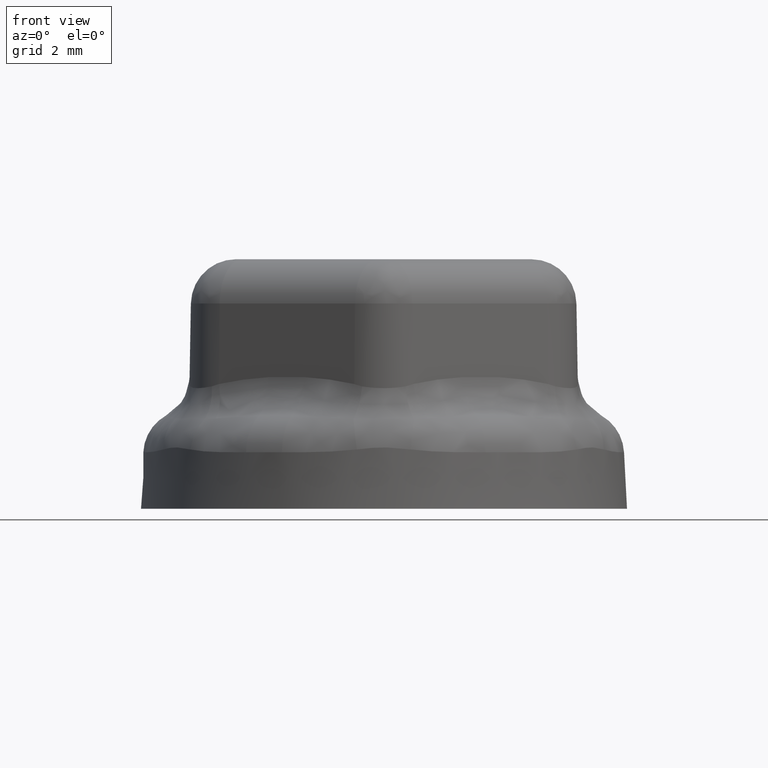
[diagram: clean part render]
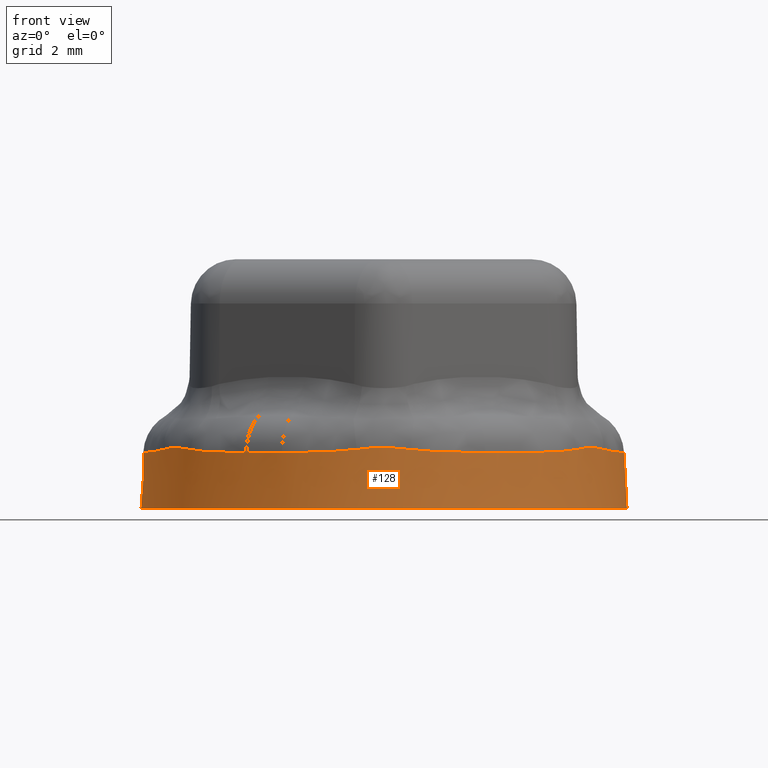
[diagram: same view with one face highlighted and labeled with its STEP entity id]
A machine part, front view. The second image highlights one B-rep face of the part: STEP entity #128.
In plain terms, the highlighted conical surface has half-angle 3 deg.
Its self-contained STEP definition (entity closure, byte-faithful):
#128 = ADVANCED_FACE( '', ( #314, #315 ), #316, .T. );
#314 = FACE_BOUND( '', #2387, .T. );
#315 = FACE_OUTER_BOUND( '', #2388, .T. );
#316 = CONICAL_SURFACE( '', #2389, 8.09433400270946, 0.0523598775598299 );
#2387 = EDGE_LOOP( '', ( #5899, #5900, #5901, #5902, #5903, #5904, #5905, #5906, #5907, #5908, #5909, #5910, #5911, #5912, #5913, #5914, #5915, #5916, #5917, #5918, #5919, #5920, #5921, #5922 ) );
#2388 = EDGE_LOOP( '', ( #5923 ) );
#2389 = AXIS2_PLACEMENT_3D( '', #5924, #5925, #5926 );
#5899 = ORIENTED_EDGE( '', *, *, #6474, .T. );
#5900 = ORIENTED_EDGE( '', *, *, #6475, .T. );
#5901 = ORIENTED_EDGE( '', *, *, #6476, .T. );
#5902 = ORIENTED_EDGE( '', *, *, #6477, .T. );
#5903 = ORIENTED_EDGE( '', *, *, #6478, .T. );
#5904 = ORIENTED_EDGE( '', *, *, #6479, .T. );
#5905 = ORIENTED_EDGE( '', *, *, #6480, .T. );
#5906 = ORIENTED_EDGE( '', *, *, #6481, .T. );
#5907 = ORIENTED_EDGE( '', *, *, #6482, .T. );
#5908 = ORIENTED_EDGE( '', *, *, #6483, .T. );
#5909 = ORIENTED_EDGE( '', *, *, #6469, .T. );
#5910 = ORIENTED_EDGE( '', *, *, #6473, .T. );
#5911 = ORIENTED_EDGE( '', *, *, #6484, .T. );
#5912 = ORIENTED_EDGE( '', *, *, #6465, .T. );
#5913 = ORIENTED_EDGE( '', *, *, #6485, .T. );
#5914 = ORIENTED_EDGE( '', *, *, #6486, .T. );
#5915 = ORIENTED_EDGE( '', *, *, #6487, .T. );
#5916 = ORIENTED_EDGE( '', *, *, #6488, .T. );
#5917 = ORIENTED_EDGE( '', *, *, #6489, .T. );
#5918 = ORIENTED_EDGE( '', *, *, #6490, .T. );
#5919 = ORIENTED_EDGE( '', *, *, #6491, .T. );
#5920 = ORIENTED_EDGE( '', *, *, #6492, .T. );
#5921 = ORIENTED_EDGE( '', *, *, #6493, .T. );
#5922 = ORIENTED_EDGE( '', *, *, #6494, .T. );
#5923 = ORIENTED_EDGE( '', *, *, #6495, .T. );
#5924 = CARTESIAN_POINT( '', ( 1.21430643318377E-014, 0.000000000000000, 3.03576608295941E-015 ) );
#5925 = DIRECTION( '', ( 0.000000000000000, 0.000000000000000, -1.00000000000000 ) );
#5926 = DIRECTION( '', ( 1.00000000000000, 0.000000000000000, 0.000000000000000 ) );
#6465 = EDGE_CURVE( '', #6865, #6869, #6871, .T. );
#6469 = EDGE_CURVE( '', #6873, #6877, #6879, .T. );
#6473 = EDGE_CURVE( '', #6877, #6884, #6886, .T. );
#6474 = EDGE_CURVE( '', #6887, #6888, #6889, .T. );
#6475 = EDGE_CURVE( '', #6888, #6890, #6891, .T. );
#6476 = EDGE_CURVE( '', #6890, #6892, #6893, .T. );
#6477 = EDGE_CURVE( '', #6892, #6894, #6895, .T. );
#6478 = EDGE_CURVE( '', #6894, #6896, #6897, .T. );
#6479 = EDGE_CURVE( '', #6896, #6898, #6899, .T. );
#6480 = EDGE_CURVE( '', #6898, #6900, #6901, .T. );
#6481 = EDGE_CURVE( '', #6900, #6902, #6903, .T. );
#6482 = EDGE_CURVE( '', #6902, #6904, #6905, .T. );
#6483 = EDGE_CURVE( '', #6904, #6873, #6906, .T. );
#6484 = EDGE_CURVE( '', #6884, #6865, #6907, .T. );
#6485 = EDGE_CURVE( '', #6869, #6908, #6909, .T. );
#6486 = EDGE_CURVE( '', #6908, #6910, #6911, .T. );
#6487 = EDGE_CURVE( '', #6910, #6912, #6913, .T. );
#6488 = EDGE_CURVE( '', #6912, #6914, #6915, .T. );
#6489 = EDGE_CURVE( '', #6914, #6916, #6917, .T. );
#6490 = EDGE_CURVE( '', #6916, #6918, #6919, .T. );
#6491 = EDGE_CURVE( '', #6918, #6920, #6921, .T. );
#6492 = EDGE_CURVE( '', #6920, #6922, #6923, .T. );
#6493 = EDGE_CURVE( '', #6922, #6924, #6925, .T. );
#6494 = EDGE_CURVE( '', #6924, #6887, #6926, .T. );
#6495 = EDGE_CURVE( '', #6927, #6927, #6928, .T. );
#6865 = VERTEX_POINT( '', #8088 );
#6869 = VERTEX_POINT( '', #8099 );
#6871 = B_SPLINE_CURVE_WITH_KNOTS( '', 3, ( #8101, #8102, #8103, #8104, #8105, #8106, #8107, #8108, #8109, #8110, #8111, #8112, #8113, #8114, #8115, #8116, #8117, #8118, #8119 ), .UNSPECIFIED., .F., .F., ( 4, 1, 1, 1, 2, 2, 2, 2, 2, 2, 4 ), ( 0.000000000000000, 0.000325173491565698, 0.000650346983131395, 0.000975520474697093, 0.00130069396626279, 0.00138198733915421, 0.00146328071204564, 0.00162586745782848, 0.00195104094939417, 0.00227621444095986, 0.00260138793252555 ), .UNSPECIFIED. );
#6873 = VERTEX_POINT( '', #8121 );
#6877 = VERTEX_POINT( '', #8144 );
#6879 = B_SPLINE_CURVE_WITH_KNOTS( '', 3, ( #8146, #8147, #8148, #8149, #8150, #8151, #8152, #8153, #8154, #8155, #8156, #8157, #8158, #8159, #8160, #8161, #8162, #8163, #8164 ), .UNSPECIFIED., .F., .F., ( 4, 2, 2, 2, 1, 2, 2, 2, 2, 4 ), ( 0.000000000000000, 0.000223145436456121, 0.000446290872912242, 0.000669436309368364, 0.000892581745824485, 0.00111572718228061, 0.00133887261873673, 0.00156201805519285, 0.00167359077342091, 0.00178516349164897 ), .UNSPECIFIED. );
#6884 = VERTEX_POINT( '', #8181 );
#6886 = B_SPLINE_CURVE_WITH_KNOTS( '', 3, ( #8183, #8184, #8185, #8186, #8187, #8188, #8189, #8190, #8191, #8192, #8193, #8194, #8195, #8196, #8197, #8198 ), .UNSPECIFIED., .F., .F., ( 4, 2, 2, 2, 2, 1, 1, 1, 1, 4 ), ( 0.000000000000000, 0.000164640328272019, 0.000329280656544039, 0.000658561313088078, 0.000987841969632118, 0.00131712262617616, 0.00164640328272020, 0.00197568393926423, 0.00230496459580827, 0.00263424525235231 ), .UNSPECIFIED. );
#6887 = VERTEX_POINT( '', #8199 );
#6888 = VERTEX_POINT( '', #8200 );
#6889 = CIRCLE( '', #8201, 7.99588578313496 );
#6890 = VERTEX_POINT( '', #8202 );
#6891 = B_SPLINE_CURVE_WITH_KNOTS( '', 3, ( #8203, #8204, #8205, #8206, #8207, #8208, #8209, #8210, #8211, #8212, #8213, #8214, #8215, #8216, #8217, #8218, #8219, #8220, #8221 ), .UNSPECIFIED., .F., .F., ( 4, 1, 1, 1, 2, 2, 2, 2, 2, 2, 4 ), ( 0.000000000000000, 0.000325173491565409, 0.000650346983130818, 0.000975520474696227, 0.00130069396626164, 0.00138198733915299, 0.00146328071204434, 0.00162586745782704, 0.00195104094939245, 0.00227621444095786, 0.00260138793252326 ), .UNSPECIFIED. );
#6892 = VERTEX_POINT( '', #8222 );
#6893 = B_SPLINE_CURVE_WITH_KNOTS( '', 3, ( #8223, #8224, #8225, #8226, #8227, #8228, #8229, #8230, #8231, #8232, #8233, #8234, #8235, #8236, #8237, #8238, #8239, #8240, #8241 ), .UNSPECIFIED., .F., .F., ( 4, 2, 2, 2, 1, 2, 2, 2, 2, 4 ), ( 0.000000000000000, 0.000223145436456501, 0.000446290872913002, 0.000669436309369503, 0.000892581745826004, 0.00111572718228250, 0.00133887261873901, 0.00156201805519551, 0.00167359077342376, 0.00178516349165201 ), .UNSPECIFIED. );
#6894 = VERTEX_POINT( '', #8242 );
#6895 = B_SPLINE_CURVE_WITH_KNOTS( '', 3, ( #8243, #8244, #8245, #8246, #8247, #8248, #8249, #8250, #8251, #8252, #8253, #8254, #8255, #8256, #8257, #8258 ), .UNSPECIFIED., .F., .F., ( 4, 2, 2, 2, 2, 1, 1, 1, 1, 4 ), ( 0.000000000000000, 0.000164640328272002, 0.000329280656544005, 0.000658561313088010, 0.000987841969632014, 0.00131712262617602, 0.00164640328272003, 0.00197568393926403, 0.00230496459580804, 0.00263424525235204 ), .UNSPECIFIED. );
#6896 = VERTEX_POINT( '', #8259 );
#6897 = CIRCLE( '', #8260, 7.99588578313496 );
#6898 = VERTEX_POINT( '', #8261 );
#6899 = B_SPLINE_CURVE_WITH_KNOTS( '', 3, ( #8262, #8263, #8264, #8265, #8266, #8267, #8268, #8269, #8270, #8271, #8272, #8273, #8274, #8275, #8276, #8277, #8278, #8279, #8280 ), .UNSPECIFIED., .F., .F., ( 4, 1, 1, 1, 2, 2, 2, 2, 2, 2, 4 ), ( 0.000000000000000, 0.000325173491565534, 0.000650346983131068, 0.000975520474696602, 0.00130069396626214, 0.00138198733915352, 0.00146328071204490, 0.00162586745782767, 0.00195104094939321, 0.00227621444095874, 0.00260138793252428 ), .UNSPECIFIED. );
#6900 = VERTEX_POINT( '', #8281 );
#6901 = B_SPLINE_CURVE_WITH_KNOTS( '', 3, ( #8282, #8283, #8284, #8285, #8286, #8287, #8288, #8289, #8290, #8291, #8292, #8293, #8294, #8295, #8296, #8297, #8298, #8299, #8300 ), .UNSPECIFIED., .F., .F., ( 4, 2, 2, 2, 1, 2, 2, 2, 2, 4 ), ( 0.000000000000000, 0.000223145436456382, 0.000446290872912763, 0.000669436309369145, 0.000892581745825526, 0.00111572718228191, 0.00133887261873829, 0.00156201805519467, 0.00167359077342286, 0.00178516349165105 ), .UNSPECIFIED. );
#6902 = VERTEX_POINT( '', #8301 );
#6903 = B_SPLINE_CURVE_WITH_KNOTS( '', 3, ( #8302, #8303, #8304, #8305, #8306, #8307, #8308, #8309, #8310, #8311, #8312, #8313, #8314, #8315, #8316, #8317 ), .UNSPECIFIED., .F., .F., ( 4, 2, 2, 2, 2, 1, 1, 1, 1, 4 ), ( 0.000000000000000, 0.000164640328271998, 0.000329280656543995, 0.000658561313087990, 0.000987841969631986, 0.00131712262617598, 0.00164640328271998, 0.00197568393926397, 0.00230496459580797, 0.00263424525235196 ), .UNSPECIFIED. );
#6904 = VERTEX_POINT( '', #8318 );
#6905 = CIRCLE( '', #8319, 7.99588578313496 );
#6906 = B_SPLINE_CURVE_WITH_KNOTS( '', 3, ( #8320, #8321, #8322, #8323, #8324, #8325, #8326, #8327, #8328, #8329, #8330, #8331, #8332, #8333, #8334, #8335, #8336, #8337, #8338 ), .UNSPECIFIED., .F., .F., ( 4, 1, 1, 1, 2, 2, 2, 2, 2, 2, 4 ), ( 0.000000000000000, 0.000325173491565790, 0.000650346983131579, 0.000975520474697369, 0.00130069396626316, 0.00138198733915461, 0.00146328071204605, 0.00162586745782895, 0.00195104094939474, 0.00227621444096053, 0.00260138793252632 ), .UNSPECIFIED. );
#6907 = CIRCLE( '', #8339, 7.99588578313496 );
#6908 = VERTEX_POINT( '', #8340 );
#6909 = B_SPLINE_CURVE_WITH_KNOTS( '', 3, ( #8341, #8342, #8343, #8344, #8345, #8346, #8347, #8348, #8349, #8350, #8351, #8352, #8353, #8354, #8355, #8356, #8357, #8358, #8359 ), .UNSPECIFIED., .F., .F., ( 4, 2, 2, 2, 1, 2, 2, 2, 2, 4 ), ( 0.000000000000000, 0.000223145436456239, 0.000446290872912477, 0.000669436309368716, 0.000892581745824954, 0.00111572718228119, 0.00133887261873743, 0.00156201805519367, 0.00167359077342179, 0.00178516349164991 ), .UNSPECIFIED. );
#6910 = VERTEX_POINT( '', #8360 );
#6911 = B_SPLINE_CURVE_WITH_KNOTS( '', 3, ( #8361, #8362, #8363, #8364, #8365, #8366, #8367, #8368, #8369, #8370, #8371, #8372, #8373, #8374, #8375, #8376 ), .UNSPECIFIED., .F., .F., ( 4, 2, 2, 2, 2, 1, 1, 1, 1, 4 ), ( 0.000000000000000, 0.000164640328272026, 0.000329280656544052, 0.000658561313088103, 0.000987841969632155, 0.00131712262617621, 0.00164640328272026, 0.00197568393926431, 0.00230496459580836, 0.00263424525235241 ), .UNSPECIFIED. );
#6912 = VERTEX_POINT( '', #8377 );
#6913 = CIRCLE( '', #8378, 7.99588578313496 );
#6914 = VERTEX_POINT( '', #8379 );
#6915 = B_SPLINE_CURVE_WITH_KNOTS( '', 3, ( #8380, #8381, #8382, #8383, #8384, #8385, #8386, #8387, #8388, #8389, #8390, #8391, #8392, #8393, #8394, #8395, #8396, #8397, #8398 ), .UNSPECIFIED., .F., .F., ( 4, 1, 1, 1, 2, 2, 2, 2, 2, 2, 4 ), ( 0.000000000000000, 0.000325173491565626, 0.000650346983131251, 0.000975520474696877, 0.00130069396626250, 0.00138198733915391, 0.00146328071204532, 0.00162586745782813, 0.00195104094939375, 0.00227621444095938, 0.00260138793252500 ), .UNSPECIFIED. );
#6916 = VERTEX_POINT( '', #8399 );
#6917 = B_SPLINE_CURVE_WITH_KNOTS( '', 3, ( #8400, #8401, #8402, #8403, #8404, #8405, #8406, #8407, #8408, #8409, #8410, #8411, #8412, #8413, #8414, #8415, #8416, #8417, #8418 ), .UNSPECIFIED., .F., .F., ( 4, 2, 2, 2, 1, 2, 2, 2, 2, 4 ), ( 0.000000000000000, 0.000223145436456331, 0.000446290872912662, 0.000669436309368993, 0.000892581745825325, 0.00111572718228166, 0.00133887261873799, 0.00156201805519432, 0.00167359077342248, 0.00178516349165065 ), .UNSPECIFIED. );
#6918 = VERTEX_POINT( '', #8419 );
#6919 = B_SPLINE_CURVE_WITH_KNOTS( '', 3, ( #8420, #8421, #8422, #8423, #8424, #8425, #8426, #8427, #8428, #8429, #8430, #8431, #8432, #8433, #8434, #8435 ), .UNSPECIFIED., .F., .F., ( 4, 2, 2, 2, 2, 1, 1, 1, 1, 4 ), ( 0.000000000000000, 0.000164640328272011, 0.000329280656544022, 0.000658561313088048, 0.000987841969632074, 0.00131712262617610, 0.00164640328272013, 0.00197568393926415, 0.00230496459580818, 0.00263424525235220 ), .UNSPECIFIED. );
#6920 = VERTEX_POINT( '', #8436 );
#6921 = CIRCLE( '', #8437, 7.99588578313496 );
#6922 = VERTEX_POINT( '', #8438 );
#6923 = B_SPLINE_CURVE_WITH_KNOTS( '', 3, ( #8439, #8440, #8441, #8442, #8443, #8444, #8445, #8446, #8447, #8448, #8449, #8450, #8451, #8452, #8453, #8454, #8455, #8456, #8457 ), .UNSPECIFIED., .F., .F., ( 4, 1, 1, 1, 2, 2, 2, 2, 2, 2, 4 ), ( 0.000000000000000, 0.000325173491565802, 0.000650346983131603, 0.000975520474697405, 0.00130069396626321, 0.00138198733915466, 0.00146328071204611, 0.00162586745782901, 0.00195104094939481, 0.00227621444096061, 0.00260138793252641 ), .UNSPECIFIED. );
#6924 = VERTEX_POINT( '', #8458 );
#6925 = B_SPLINE_CURVE_WITH_KNOTS( '', 3, ( #8459, #8460, #8461, #8462, #8463, #8464, #8465, #8466, #8467, #8468, #8469, #8470, #8471, #8472, #8473, #8474, #8475, #8476, #8477 ), .UNSPECIFIED., .F., .F., ( 4, 2, 2, 2, 1, 2, 2, 2, 2, 4 ), ( 0.000000000000000, 0.000223145436456130, 0.000446290872912259, 0.000669436309368389, 0.000892581745824519, 0.00111572718228065, 0.00133887261873678, 0.00156201805519291, 0.00167359077342097, 0.00178516349164904 ), .UNSPECIFIED. );
#6926 = B_SPLINE_CURVE_WITH_KNOTS( '', 3, ( #8478, #8479, #8480, #8481, #8482, #8483, #8484, #8485, #8486, #8487, #8488, #8489, #8490, #8491, #8492, #8493 ), .UNSPECIFIED., .F., .F., ( 4, 2, 2, 2, 2, 1, 1, 1, 1, 4 ), ( 0.000000000000000, 0.000164640328272010, 0.000329280656544020, 0.000658561313088040, 0.000987841969632061, 0.00131712262617608, 0.00164640328272010, 0.00197568393926412, 0.00230496459580815, 0.00263424525235217 ), .UNSPECIFIED. );
#6927 = VERTEX_POINT( '', #8494 );
#6928 = CIRCLE( '', #8495, 8.09433400270946 );
#8088 = CARTESIAN_POINT( '', ( -4.57923743016947, -6.55475201781689, 1.87850393436442 ) );
#8099 = CARTESIAN_POINT( '', ( -6.43078995403035, -4.74343509866338, 1.97273912912157 ) );
#8101 = CARTESIAN_POINT( '', ( -4.57923743016947, -6.55475201781689, 1.87850393436442 ) );
#8102 = CARTESIAN_POINT( '', ( -4.66844510581741, -6.49243034244685, 1.87850393436442 ) );
#8103 = CARTESIAN_POINT( '', ( -4.84398973222034, -6.36436791151696, 1.87861370707231 ) );
#8104 = CARTESIAN_POINT( '', ( -5.09874144512760, -6.16208175314542, 1.87970976248219 ) );
#8105 = CARTESIAN_POINT( '', ( -5.34492305439954, -5.94960941245997, 1.88256913845339 ) );
#8106 = CARTESIAN_POINT( '', ( -5.50329290473958, -5.80113581674561, 1.88636939840489 ) );
#8107 = CARTESIAN_POINT( '', ( -5.60045367606433, -5.70618347922071, 1.88962055601861 ) );
#8108 = CARTESIAN_POINT( '', ( -5.61979476531194, -5.68708514390722, 1.89031484279430 ) );
#8109 = CARTESIAN_POINT( '', ( -5.65829404865170, -5.64867194532800, 1.89179970590461 ) );
#8110 = CARTESIAN_POINT( '', ( -5.67744975481611, -5.62935940966744, 1.89259022911036 ) );
#8111 = CARTESIAN_POINT( '', ( -5.73456830929742, -5.57117125863433, 1.89511564240083 ) );
#8112 = CARTESIAN_POINT( '', ( -5.77220670365912, -5.53202122094323, 1.89700506147033 ) );
#8113 = CARTESIAN_POINT( '', ( -5.88379769254280, -5.41350462529586, 1.90339461159505 ) );
#8114 = CARTESIAN_POINT( '', ( -5.95642683162169, -5.33307183678718, 1.90861178872447 ) );
#8115 = CARTESIAN_POINT( '', ( -6.09812605705273, -5.16939523506956, 1.92160548082091 ) );
#8116 = CARTESIAN_POINT( '', ( -6.16719624454887, -5.08615134835036, 1.92938020355353 ) );
#8117 = CARTESIAN_POINT( '', ( -6.30172351837620, -4.91687764607025, 1.94828768776144 ) );
#8118 = CARTESIAN_POINT( '', ( -6.36718080986840, -4.83084771390334, 1.95941729604885 ) );
#8119 = CARTESIAN_POINT( '', ( -6.43078995870948, -4.74343509223326, 1.97273913010151 ) );
#8121 = CARTESIAN_POINT( '', ( 0.892540319629105, -7.94094501592385, 1.97273912912169 ) );
#8144 = CARTESIAN_POINT( '', ( -0.892540312113904, -7.94094501671942, 1.97273913005295 ) );
#8146 = CARTESIAN_POINT( '', ( 0.892540319629105, -7.94094501592385, 1.97273912912169 ) );
#8147 = CARTESIAN_POINT( '', ( 0.818360877338619, -7.94879781015866, 1.98193122104519 ) );
#8148 = CARTESIAN_POINT( '', ( 0.744167073748708, -7.95561282016570, 1.99090875358523 ) );
#8149 = CARTESIAN_POINT( '', ( 0.595736232359362, -7.96723928828960, 2.00733571677285 ) );
#8150 = CARTESIAN_POINT( '', ( 0.521499114729443, -7.97205103676896, 2.01477918504799 ) );
#8151 = CARTESIAN_POINT( '', ( 0.372968636705382, -7.97972989003907, 2.02715731194931 ) );
#8152 = CARTESIAN_POINT( '', ( 0.298675207483177, -7.98259723174954, 2.03208684051854 ) );
#8153 = CARTESIAN_POINT( '', ( 0.150023061793813, -7.98642429034693, 2.03875832983725 ) );
#8154 = CARTESIAN_POINT( '', ( 0.00130555040109073, -7.98834396057151, 2.04223642995202 ) );
#8155 = CARTESIAN_POINT( '', ( -0.147549339295440, -7.98646757178252, 2.03883560575628 ) );
#8156 = CARTESIAN_POINT( '', ( -0.296470023067180, -7.98267377786753, 2.03221850979464 ) );
#8157 = CARTESIAN_POINT( '', ( -0.370963225793561, -7.97981803588106, 2.02730453792470 ) );
#8158 = CARTESIAN_POINT( '', ( -0.520006700821119, -7.97214336412206, 2.01492299689770 ) );
#8159 = CARTESIAN_POINT( '', ( -0.594556905064878, -7.96732417062158, 2.00746052354950 ) );
#8160 = CARTESIAN_POINT( '', ( -0.706415280642517, -7.95857357274359, 1.99508958376818 ) );
#8161 = CARTESIAN_POINT( '', ( -0.743705756123126, -7.95540276070327, 1.99077172090853 ) );
#8162 = CARTESIAN_POINT( '', ( -0.818176420705451, -7.94855638831956, 1.98190011608692 ) );
#8163 = CARTESIAN_POINT( '', ( -0.855373529396517, -7.94487957174145, 1.97734472524958 ) );
#8164 = CARTESIAN_POINT( '', ( -0.892540320022092, -7.94094501588225, 1.97273912907297 ) );
#8181 = CARTESIAN_POINT( '', ( -3.38696304785198, -7.24311195339578, 1.87850393436442 ) );
#8183 = CARTESIAN_POINT( '', ( -0.892540312113904, -7.94094501671942, 1.97273913005295 ) );
#8184 = CARTESIAN_POINT( '', ( -0.946707252859064, -7.93521078871572, 1.96602692651302 ) );
#8185 = CARTESIAN_POINT( '', ( -1.00090954979059, -7.92888188965249, 1.95986192579855 ) );
#8186 = CARTESIAN_POINT( '', ( -1.10895485440095, -7.91509299153859, 1.94853299840521 ) );
#8187 = CARTESIAN_POINT( '', ( -1.16283253897578, -7.90763011733748, 1.94336418305927 ) );
#8188 = CARTESIAN_POINT( '', ( -1.32403032444936, -7.88355888764946, 1.92914926498977 ) );
#8189 = CARTESIAN_POINT( '', ( -1.43091521314216, -7.86526890662124, 1.92138828206826 ) );
#8190 = CARTESIAN_POINT( '', ( -1.64352167694055, -7.82429905404379, 1.90844406817118 ) );
#8191 = CARTESIAN_POINT( '', ( -1.74924328731672, -7.80161904121445, 1.90326299808736 ) );
#8192 = CARTESIAN_POINT( '', ( -1.95951839380109, -7.75193405013375, 1.89481159462664 ) );
#8193 = CARTESIAN_POINT( '', ( -2.16862541353401, -7.69792397136826, 1.88827271197489 ) );
#8194 = CARTESIAN_POINT( '', ( -2.47875818589735, -7.60404900524969, 1.88258860082596 ) );
#8195 = CARTESIAN_POINT( '', ( -2.78532901969309, -7.49735480652147, 1.87972041031204 ) );
#8196 = CARTESIAN_POINT( '', ( -3.08829172174971, -7.37780864488734, 1.87861510207664 ) );
#8197 = CARTESIAN_POINT( '', ( -3.28782174541946, -7.28947157478728, 1.87850393436355 ) );
#8198 = CARTESIAN_POINT( '', ( -3.38696304785190, -7.24311195339593, 1.87850393436355 ) );
#8199 = CARTESIAN_POINT( '', ( 3.38696304785185, 7.24311195339586, 1.87850393436442 ) );
#8200 = CARTESIAN_POINT( '', ( 4.57923743016964, 6.55475201781679, 1.87850393436442 ) );
#8201 = AXIS2_PLACEMENT_3D( '', #9616, #9617, #9618 );
#8202 = CARTESIAN_POINT( '', ( 6.43078995402913, 4.74343509866509, 1.97273912912131 ) );
#8203 = CARTESIAN_POINT( '', ( 4.57923743016964, 6.55475201781679, 1.87850393436442 ) );
#8204 = CARTESIAN_POINT( '', ( 4.66844510581749, 6.49243034244681, 1.87850393436442 ) );
#8205 = CARTESIAN_POINT( '', ( 4.84398973222027, 6.36436791151702, 1.87861370707231 ) );
#8206 = CARTESIAN_POINT( '', ( 5.09874144512731, 6.16208175314568, 1.87970976248219 ) );
#8207 = CARTESIAN_POINT( '', ( 5.34492305439904, 5.94960941246043, 1.88256913845338 ) );
#8208 = CARTESIAN_POINT( '', ( 5.50329290473897, 5.80113581674621, 1.88636939840488 ) );
#8209 = CARTESIAN_POINT( '', ( 5.60045367606364, 5.70618347922141, 1.88962055601858 ) );
#8210 = CARTESIAN_POINT( '', ( 5.61979476531124, 5.68708514390794, 1.89031484279427 ) );
#8211 = CARTESIAN_POINT( '', ( 5.65829404865097, 5.64867194532876, 1.89179970590458 ) );
#8212 = CARTESIAN_POINT( '', ( 5.67744975481537, 5.62935940966821, 1.89259022911032 ) );
#8213 = CARTESIAN_POINT( '', ( 5.73456830929663, 5.57117125863517, 1.89511564240079 ) );
#8214 = CARTESIAN_POINT( '', ( 5.77220670365831, 5.53202122094411, 1.89700506147029 ) );
#8215 = CARTESIAN_POINT( '', ( 5.88379769254191, 5.41350462529685, 1.90339461159498 ) );
#8216 = CARTESIAN_POINT( '', ( 5.95642683162075, 5.33307183678826, 1.90861178872439 ) );
#8217 = CARTESIAN_POINT( '', ( 6.09812605705170, 5.16939523507081, 1.92160548082080 ) );
#8218 = CARTESIAN_POINT( '', ( 6.16719624454780, 5.08615134835170, 1.92938020355340 ) );
#8219 = CARTESIAN_POINT( '', ( 6.30172351837506, 4.91687764607177, 1.94828768776125 ) );
#8220 = CARTESIAN_POINT( '', ( 6.36718080986847, 4.83084771390328, 1.95941729604885 ) );
#8221 = CARTESIAN_POINT( '', ( 6.43078995870949, 4.74343509223327, 1.97273913010151 ) );
#8222 = CARTESIAN_POINT( '', ( 7.32333027059142, 3.19750992416739, 1.97273913005294 ) );
#8223 = CARTESIAN_POINT( '', ( 6.43078995402913, 4.74343509866509, 1.97273912912131 ) );
#8224 = CARTESIAN_POINT( '', ( 6.47468039447252, 4.68312021432029, 1.98193122104471 ) );
#8225 = CARTESIAN_POINT( '', ( 6.51767926806071, 4.62227400061147, 1.99090875358466 ) );
#8226 = CARTESIAN_POINT( '', ( 6.60196350550715, 4.49954235532498, 2.00733571677219 ) );
#8227 = CARTESIAN_POINT( '', ( 6.64324916074195, 4.43765699979333, 2.01477918504732 ) );
#8228 = CARTESIAN_POINT( '', ( 6.72416448175800, 4.31286525922312, 2.02715731194869 ) );
#8229 = CARTESIAN_POINT( '', ( 6.76379438713178, 4.24995893303757, 2.03208684051799 ) );
#8230 = CARTESIAN_POINT( '', ( 6.84143478994373, 4.12313592784202, 2.03875832983686 ) );
#8231 = CARTESIAN_POINT( '', ( 6.91745602882161, 3.99530262010040, 2.04223642995182 ) );
#8232 = CARTESIAN_POINT( '', ( 6.99025847331137, 3.86545230975097, 2.03883560575623 ) );
#8233 = CARTESIAN_POINT( '', ( 7.06143329329027, 3.73458631749797, 2.03221850979468 ) );
#8234 = CARTESIAN_POINT( '', ( 7.09620674954660, 3.66864544053432, 2.02730453792477 ) );
#8235 = CARTESIAN_POINT( '', ( 7.16408202635151, 3.53573266901241, 2.01492299689778 ) );
#8236 = CARTESIAN_POINT( '', ( 7.19718358447629, 3.46876070152964, 2.00746052354957 ) );
#8237 = CARTESIAN_POINT( '', ( 7.24553453220456, 3.36751320771416, 1.99508958376823 ) );
#8238 = CARTESIAN_POINT( '', ( 7.26143376616735, 3.33363330260854, 1.99077172090856 ) );
#8239 = CARTESIAN_POINT( '', ( 7.29273996605051, 3.26571662905157, 1.98190011608693 ) );
#8240 = CARTESIAN_POINT( '', ( 7.30815430383438, 3.23166457968862, 1.97734472524958 ) );
#8241 = CARTESIAN_POINT( '', ( 7.32333027382051, 3.19750991690008, 1.97273912907296 ) );
#8242 = CARTESIAN_POINT( '', ( 7.96620047802146, 0.688359935579185, 1.87850393436442 ) );
#8243 = CARTESIAN_POINT( '', ( 7.32333027059142, 3.19750992416739, 1.97273913005294 ) );
#8244 = CARTESIAN_POINT( '', ( 7.34544775384170, 3.14773286343495, 1.96602692651302 ) );
#8245 = CARTESIAN_POINT( '', ( 7.36706791494072, 3.09762784781718, 1.95986192579854 ) );
#8246 = CARTESIAN_POINT( '', ( 7.40914903118906, 2.99716342020804, 1.94853299840521 ) );
#8247 = CARTESIAN_POINT( '', ( 7.42962483483306, 2.94677253956860, 1.94336418305927 ) );
#8248 = CARTESIAN_POINT( '', ( 7.48937743115969, 2.79513554747069, 1.92914926498977 ) );
#8249 = CARTESIAN_POINT( '', ( 7.52698028730092, 2.69342552806796, 1.92138828206826 ) );
#8250 = CARTESIAN_POINT( '', ( 7.59780258607874, 2.48881800312106, 1.90844406817118 ) );
#8251 = CARTESIAN_POINT( '', ( 7.63102192399845, 2.38592039639164, 1.90326299808737 ) );
#8252 = CARTESIAN_POINT( '', ( 7.69313101277794, 2.17897431685237, 1.89481159462664 ) );
#8253 = CARTESIAN_POINT( '', ( 7.75091042237309, 1.97087728627128, 1.88827271197489 ) );
#8254 = CARTESIAN_POINT( '', ( 7.82467870311667, 1.65535694379929, 1.88258860082596 ) );
#8255 = CARTESIAN_POINT( '', ( 7.88556423347948, 1.33651171430872, 1.87972041031204 ) );
#8256 = CARTESIAN_POINT( '', ( 7.93351557160773, 1.01436523711148, 1.87861510207664 ) );
#8257 = CARTESIAN_POINT( '', ( 7.95677843664006, 0.797398632745757, 1.87850393436355 ) );
#8258 = CARTESIAN_POINT( '', ( 7.96620047802155, 0.688359935579329, 1.87850393436355 ) );
#8259 = CARTESIAN_POINT( '', ( 7.96620047802146, -0.688359935579193, 1.87850393436442 ) );
#8260 = AXIS2_PLACEMENT_3D( '', #9619, #9620, #9621 );
#8261 = CARTESIAN_POINT( '', ( 7.32333027366082, -3.19750991725947, 1.97273912912144 ) );
#8262 = CARTESIAN_POINT( '', ( 7.96620047802146, -0.688359935579193, 1.87850393436442 ) );
#8263 = CARTESIAN_POINT( '', ( 7.95683216176857, -0.796776886587831, 1.87850393436442 ) );
#8264 = CARTESIAN_POINT( '', ( 7.93369915651437, -1.01283420801546, 1.87861370707231 ) );
#8265 = CARTESIAN_POINT( '', ( 7.88589006098431, -1.33459874223636, 1.87970976248219 ) );
#8266 = CARTESIAN_POINT( '', ( 7.82497442098517, -1.65403444015296, 1.88256913845339 ) );
#8267 = CARTESIAN_POINT( '', ( 7.77557744047536, -1.86542355159806, 1.88636939840489 ) );
#8268 = CARTESIAN_POINT( '', ( 7.74192668969248, -1.99704341657897, 1.88962055601860 ) );
#8269 = CARTESIAN_POINT( '', ( 7.73505759076481, -2.02334245886099, 1.89031484279429 ) );
#8270 = CARTESIAN_POINT( '', ( 7.72104042662449, -2.07589041555030, 1.89179970590460 ) );
#8271 = CARTESIAN_POINT( '', ( 7.71389313321315, -2.10213601154639, 1.89259022911034 ) );
#8272 = CARTESIAN_POINT( '', ( 7.69205999345990, -2.18069620627116, 1.89511564240082 ) );
#8273 = CARTESIAN_POINT( '', ( 7.67697426344116, -2.23286703079158, 1.89700506147031 ) );
#8274 = CARTESIAN_POINT( '', ( 7.63013137528236, -2.38876595982188, 1.90339461159502 ) );
#8275 = CARTESIAN_POINT( '', ( 7.59678910667609, -2.49188103357348, 1.90861178872444 ) );
#8276 = CARTESIAN_POINT( '', ( 7.52589062429910, -2.69643446335205, 1.92160548082086 ) );
#8277 = CARTESIAN_POINT( '', ( 7.48833439743861, -2.79787294372743, 1.92938020355347 ) );
#8278 = CARTESIAN_POINT( '', ( 7.40900270798512, -2.99901383150373, 1.94828768776135 ) );
#8279 = CARTESIAN_POINT( '', ( 7.36722724698847, -3.09871647488319, 1.95941729604885 ) );
#8280 = CARTESIAN_POINT( '', ( 7.32333027043134, -3.19750992452767, 1.97273913010150 ) );
#8281 = CARTESIAN_POINT( '', ( 6.43078995847743, -4.74343509255218, 1.97273913005292 ) );
#8282 = CARTESIAN_POINT( '', ( 7.32333027366082, -3.19750991725947, 1.97273912912144 ) );
#8283 = CARTESIAN_POINT( '', ( 7.29304127181361, -3.26567759583909, 1.98193122104489 ) );
#8284 = CARTESIAN_POINT( '', ( 7.26184634181177, -3.33333881955495, 1.99090875358488 ) );
#8285 = CARTESIAN_POINT( '', ( 7.19769973786864, -3.46769693296534, 2.00733571677247 ) );
#8286 = CARTESIAN_POINT( '', ( 7.16474827547341, -3.53439403697635, 2.01477918504760 ) );
#8287 = CARTESIAN_POINT( '', ( 7.09713311846517, -3.66686463081665, 2.02715731194894 ) );
#8288 = CARTESIAN_POINT( '', ( 7.06246959461664, -3.73263829871265, 2.03208684051819 ) );
#8289 = CARTESIAN_POINT( '', ( 6.99145785173901, -3.86328836250557, 2.03875832983692 ) );
#8290 = CARTESIAN_POINT( '', ( 6.91876157922396, -3.99304134047172, 2.04223642995169 ) );
#8291 = CARTESIAN_POINT( '', ( 6.84270913401697, -4.12101526203211, 2.03883560575592 ) );
#8292 = CARTESIAN_POINT( '', ( 6.76496327022391, -4.24808746037004, 2.03221850979424 ) );
#8293 = CARTESIAN_POINT( '', ( 6.72524352375374, -4.31117259534720, 2.02730453792429 ) );
#8294 = CARTESIAN_POINT( '', ( 6.64407532553087, -4.43641069511003, 2.01492299689730 ) );
#8295 = CARTESIAN_POINT( '', ( 6.60262667941177, -4.49856346909228, 2.00746052354914 ) );
#8296 = CARTESIAN_POINT( '', ( 6.53911925156223, -4.59106036502969, 1.99508958376792 ) );
#8297 = CARTESIAN_POINT( '', ( 6.51772801004435, -4.62176945809497, 1.99077172090831 ) );
#8298 = CARTESIAN_POINT( '', ( 6.47456354534508, -4.68283975926819, 1.98190011608679 ) );
#8299 = CARTESIAN_POINT( '', ( 6.45278077443602, -4.71321499205544, 1.97734472524913 ) );
#8300 = CARTESIAN_POINT( '', ( 6.43078995379652, -4.74343509898475, 1.97273912907257 ) );
#8301 = CARTESIAN_POINT( '', ( 4.57923743016965, -6.55475201781677, 1.87850393436442 ) );
#8302 = CARTESIAN_POINT( '', ( 6.43078995847743, -4.74343509255218, 1.97273913005292 ) );
#8303 = CARTESIAN_POINT( '', ( 6.39874050098255, -4.78747792528091, 1.96602692651300 ) );
#8304 = CARTESIAN_POINT( '', ( 6.36615836515006, -4.83125404183546, 1.95986192579853 ) );
#8305 = CARTESIAN_POINT( '', ( 6.30019417678804, -4.91792957133069, 1.94853299840520 ) );
#8306 = CARTESIAN_POINT( '', ( 6.26679229585722, -4.96085757776902, 1.94336418305925 ) );
#8307 = CARTESIAN_POINT( '', ( 6.16534710671029, -5.08842334017891, 1.92914926498976 ) );
#8308 = CARTESIAN_POINT( '', ( 6.09606507415873, -5.17184337855342, 1.92138828206826 ) );
#8309 = CARTESIAN_POINT( '', ( 5.95428090913817, -5.33548105092286, 1.90844406817117 ) );
#8310 = CARTESIAN_POINT( '', ( 5.88177863668173, -5.41569864482295, 1.90326299808736 ) );
#8311 = CARTESIAN_POINT( '', ( 5.73361261897687, -5.57295973328152, 1.89481159462664 ) );
#8312 = CARTESIAN_POINT( '', ( 5.58228500883912, -5.72704668509711, 1.88827271197489 ) );
#8313 = CARTESIAN_POINT( '', ( 5.34592051721940, -5.94869206145055, 1.88258860082596 ) );
#8314 = CARTESIAN_POINT( '', ( 5.10023521378650, -6.16084309221290, 1.87972041031204 ) );
#8315 = CARTESIAN_POINT( '', ( 4.84522384985815, -6.36344340777603, 1.87861510207664 ) );
#8316 = CARTESIAN_POINT( '', ( 4.66895669122076, -6.49207294204169, 1.87850393436355 ) );
#8317 = CARTESIAN_POINT( '', ( 4.57923743016982, -6.55475201781678, 1.87850393436355 ) );
#8318 = CARTESIAN_POINT( '', ( 3.38696304785182, -7.24311195339587, 1.87850393436442 ) );
#8319 = AXIS2_PLACEMENT_3D( '', #9622, #9623, #9624 );
#8320 = CARTESIAN_POINT( '', ( 3.38696304785182, -7.24311195339587, 1.87850393436442 ) );
#8321 = CARTESIAN_POINT( '', ( 3.28838705595097, -7.28920722903454, 1.87850393436442 ) );
#8322 = CARTESIAN_POINT( '', ( 3.08970942429376, -7.37720211953240, 1.87861370707232 ) );
#8323 = CARTESIAN_POINT( '', ( 2.78714861585633, -7.49668049538194, 1.87970976248219 ) );
#8324 = CARTESIAN_POINT( '', ( 2.48005136658512, -7.60364385261326, 1.88256913845340 ) );
#8325 = CARTESIAN_POINT( '', ( 2.27228453573517, -7.66655936834411, 1.88636939840490 ) );
#8326 = CARTESIAN_POINT( '', ( 2.14147301362748, -7.70322689580018, 1.88962055601862 ) );
#8327 = CARTESIAN_POINT( '', ( 2.11526282545219, -7.71042760276873, 1.89031484279432 ) );
#8328 = CARTESIAN_POINT( '', ( 2.06274637797207, -7.72456236087885, 1.89179970590463 ) );
#8329 = CARTESIAN_POINT( '', ( 2.03644337839631, -7.73149542121437, 1.89259022911037 ) );
#8330 = CARTESIAN_POINT( '', ( 1.95749168416172, -7.75186746490608, 1.89511564240086 ) );
#8331 = CARTESIAN_POINT( '', ( 1.90476755978124, -7.76488825173542, 1.89700506147035 ) );
#8332 = CARTESIAN_POINT( '', ( 1.74633368273868, -7.80227058511842, 1.90339461159508 ) );
#8333 = CARTESIAN_POINT( '', ( 1.64036227505347, -7.82495287036139, 1.90861178872451 ) );
#8334 = CARTESIAN_POINT( '', ( 1.42776456724532, -7.86582969842242, 1.92160548082096 ) );
#8335 = CARTESIAN_POINT( '', ( 1.32113815288863, -7.88402429207863, 1.92938020355359 ) );
#8336 = CARTESIAN_POINT( '', ( 1.10727918960768, -7.91589147757490, 1.94828768776153 ) );
#8337 = CARTESIAN_POINT( '', ( 1.00004643712010, -7.92956418878649, 1.95941729604884 ) );
#8338 = CARTESIAN_POINT( '', ( 0.892540311721840, -7.94094501676093, 1.97273913010151 ) );
#8339 = AXIS2_PLACEMENT_3D( '', #9625, #9626, #9627 );
#8340 = CARTESIAN_POINT( '', ( -7.32333027059140, -3.19750992416739, 1.97273913005295 ) );
#8341 = CARTESIAN_POINT( '', ( -6.43078995403035, -4.74343509866338, 1.97273912912157 ) );
#8342 = CARTESIAN_POINT( '', ( -6.47468039447366, -4.68312021431864, 1.98193122104505 ) );
#8343 = CARTESIAN_POINT( '', ( -6.51767926806178, -4.62227400060988, 1.99090875358506 ) );
#8344 = CARTESIAN_POINT( '', ( -6.60196350550810, -4.49954235532350, 2.00733571677265 ) );
#8345 = CARTESIAN_POINT( '', ( -6.64324916074284, -4.43765699979192, 2.01477918504779 ) );
#8346 = CARTESIAN_POINT( '', ( -6.72416448175877, -4.31286525922183, 2.02715731194912 ) );
#8347 = CARTESIAN_POINT( '', ( -6.76379438713250, -4.24995893303635, 2.03208684051838 ) );
#8348 = CARTESIAN_POINT( '', ( -6.84143478994434, -4.12313592784093, 2.03875832983714 ) );
#8349 = CARTESIAN_POINT( '', ( -6.91745602882212, -3.99530262009946, 2.04223642995196 ) );
#8350 = CARTESIAN_POINT( '', ( -6.99025847331179, -3.86545230975017, 2.03883560575627 ) );
#8351 = CARTESIAN_POINT( '', ( -7.06143329329059, -3.73458631749733, 2.03221850979466 ) );
#8352 = CARTESIAN_POINT( '', ( -7.09620674954687, -3.66864544053375, 2.02730453792473 ) );
#8353 = CARTESIAN_POINT( '', ( -7.16408202635169, -3.53573266901200, 2.01492299689772 ) );
#8354 = CARTESIAN_POINT( '', ( -7.19718358447642, -3.46876070152931, 2.00746052354952 ) );
#8355 = CARTESIAN_POINT( '', ( -7.24553453220462, -3.36751320771396, 1.99508958376820 ) );
#8356 = CARTESIAN_POINT( '', ( -7.26143376616740, -3.33363330260838, 1.99077172090855 ) );
#8357 = CARTESIAN_POINT( '', ( -7.29273996605052, -3.26571662905148, 1.98190011608693 ) );
#8358 = CARTESIAN_POINT( '', ( -7.30815430383437, -3.23166457968859, 1.97734472524959 ) );
#8359 = CARTESIAN_POINT( '', ( -7.32333027382049, -3.19750991690008, 1.97273912907297 ) );
#8360 = CARTESIAN_POINT( '', ( -7.96620047802147, -0.688359935578833, 1.87850393436442 ) );
#8361 = CARTESIAN_POINT( '', ( -7.32333027059140, -3.19750992416739, 1.97273913005295 ) );
#8362 = CARTESIAN_POINT( '', ( -7.34544775384168, -3.14773286343494, 1.96602692651303 ) );
#8363 = CARTESIAN_POINT( '', ( -7.36706791494071, -3.09762784781716, 1.95986192579855 ) );
#8364 = CARTESIAN_POINT( '', ( -7.40914903118905, -2.99716342020801, 1.94853299840522 ) );
#8365 = CARTESIAN_POINT( '', ( -7.42962483483305, -2.94677253956856, 1.94336418305927 ) );
#8366 = CARTESIAN_POINT( '', ( -7.48937743115969, -2.79513554747063, 1.92914926498977 ) );
#8367 = CARTESIAN_POINT( '', ( -7.52698028730092, -2.69342552806789, 1.92138828206827 ) );
#8368 = CARTESIAN_POINT( '', ( -7.59780258607874, -2.48881800312096, 1.90844406817118 ) );
#8369 = CARTESIAN_POINT( '', ( -7.63102192399846, -2.38592039639153, 1.90326299808736 ) );
#8370 = CARTESIAN_POINT( '', ( -7.69313101277796, -2.17897431685223, 1.89481159462664 ) );
#8371 = CARTESIAN_POINT( '', ( -7.75091040092171, -1.97087725535339, 1.88827344840748 ) );
#8372 = CARTESIAN_POINT( '', ( -7.82467870311670, -1.65535694379907, 1.88258860082596 ) );
#8373 = CARTESIAN_POINT( '', ( -7.88556423347950, -1.33651171430846, 1.87972041031204 ) );
#8374 = CARTESIAN_POINT( '', ( -7.93351557160774, -1.01436523711117, 1.87861510207664 ) );
#8375 = CARTESIAN_POINT( '', ( -7.95677843664007, -0.797398632745421, 1.87850393436355 ) );
#8376 = CARTESIAN_POINT( '', ( -7.96620047802155, -0.688359935578978, 1.87850393436355 ) );
#8377 = CARTESIAN_POINT( '', ( -7.96620047802147, 0.688359935578830, 1.87850393436442 ) );
#8378 = AXIS2_PLACEMENT_3D( '', #9628, #9629, #9630 );
#8379 = CARTESIAN_POINT( '', ( -7.32333027366065, 3.19750991725980, 1.97273912912150 ) );
#8380 = CARTESIAN_POINT( '', ( -7.96620047802147, 0.688359935578830, 1.87850393436442 ) );
#8381 = CARTESIAN_POINT( '', ( -7.95683216176859, 0.796776886587499, 1.87850393436442 ) );
#8382 = CARTESIAN_POINT( '', ( -7.93369914181983, 1.01283420653140, 1.87861359072423 ) );
#8383 = CARTESIAN_POINT( '', ( -7.88589006098431, 1.33459874223618, 1.87970976248219 ) );
#8384 = CARTESIAN_POINT( '', ( -7.82497442098516, 1.65403444015287, 1.88256913845339 ) );
#8385 = CARTESIAN_POINT( '', ( -7.77557744047535, 1.86542355159803, 1.88636939840489 ) );
#8386 = CARTESIAN_POINT( '', ( -7.74192668969246, 1.99704341657897, 1.88962055601860 ) );
#8387 = CARTESIAN_POINT( '', ( -7.73505759076478, 2.02334245886100, 1.89031484279429 ) );
#8388 = CARTESIAN_POINT( '', ( -7.72104042662445, 2.07589041555033, 1.89179970590460 ) );
#8389 = CARTESIAN_POINT( '', ( -7.71389313321312, 2.10213601154642, 1.89259022911035 ) );
#8390 = CARTESIAN_POINT( '', ( -7.69205999345986, 2.18069620627122, 1.89511564240082 ) );
#8391 = CARTESIAN_POINT( '', ( -7.67697426344111, 2.23286703079165, 1.89700506147032 ) );
#8392 = CARTESIAN_POINT( '', ( -7.63013137528230, 2.38876595982200, 1.90339461159503 ) );
#8393 = CARTESIAN_POINT( '', ( -7.59678910667601, 2.49188103357362, 1.90861178872445 ) );
#8394 = CARTESIAN_POINT( '', ( -7.52589062429900, 2.69643446335225, 1.92160548082088 ) );
#8395 = CARTESIAN_POINT( '', ( -7.48833439743850, 2.79787294372765, 1.92938020355349 ) );
#8396 = CARTESIAN_POINT( '', ( -7.40900270798499, 2.99901383150400, 1.94828768776139 ) );
#8397 = CARTESIAN_POINT( '', ( -7.36722724698846, 3.09871647488316, 1.95941729604885 ) );
#8398 = CARTESIAN_POINT( '', ( -7.32333027043132, 3.19750992452766, 1.97273913010151 ) );
#8399 = CARTESIAN_POINT( '', ( -6.43078995847743, 4.74343509255214, 1.97273913005294 ) );
#8400 = CARTESIAN_POINT( '', ( -7.32333027366065, 3.19750991725980, 1.97273912912150 ) );
#8401 = CARTESIAN_POINT( '', ( -7.29304127181344, 3.26567759583940, 1.98193122104495 ) );
#8402 = CARTESIAN_POINT( '', ( -7.26184634181161, 3.33333881955524, 1.99090875358495 ) );
#8403 = CARTESIAN_POINT( '', ( -7.19769973786848, 3.46769693296560, 2.00733571677254 ) );
#8404 = CARTESIAN_POINT( '', ( -7.16474827547326, 3.53439403697659, 2.01477918504768 ) );
#8405 = CARTESIAN_POINT( '', ( -7.09713311846504, 3.66686463081686, 2.02715731194901 ) );
#8406 = CARTESIAN_POINT( '', ( -7.06246959461650, 3.73263829871285, 2.03208684051826 ) );
#8407 = CARTESIAN_POINT( '', ( -6.99145785173888, 3.86328836250573, 2.03875832983698 ) );
#8408 = CARTESIAN_POINT( '', ( -6.91876159558299, 3.99304134642325, 2.04223663376291 ) );
#8409 = CARTESIAN_POINT( '', ( -6.84270913401687, 4.12101526203221, 2.03883560575596 ) );
#8410 = CARTESIAN_POINT( '', ( -6.76496327022383, 4.24808746037012, 2.03221850979428 ) );
#8411 = CARTESIAN_POINT( '', ( -6.72524352375368, 4.31117259534726, 2.02730453792433 ) );
#8412 = CARTESIAN_POINT( '', ( -6.64407532553082, 4.43641069511006, 2.01492299689734 ) );
#8413 = CARTESIAN_POINT( '', ( -6.60262667941173, 4.49856346909230, 2.00746052354917 ) );
#8414 = CARTESIAN_POINT( '', ( -6.53911925156220, 4.59106036502968, 1.99508958376795 ) );
#8415 = CARTESIAN_POINT( '', ( -6.51772801004434, 4.62176945809496, 1.99077172090834 ) );
#8416 = CARTESIAN_POINT( '', ( -6.47456354534507, 4.68283975926816, 1.98190011608681 ) );
#8417 = CARTESIAN_POINT( '', ( -6.45278077443618, 4.71321499205518, 1.97734472524918 ) );
#8418 = CARTESIAN_POINT( '', ( -6.43078995379669, 4.74343509898449, 1.97273912907261 ) );
#8419 = CARTESIAN_POINT( '', ( -4.57923743016948, 6.55475201781688, 1.87850393436442 ) );
#8420 = CARTESIAN_POINT( '', ( -6.43078995847743, 4.74343509255214, 1.97273913005294 ) );
#8421 = CARTESIAN_POINT( '', ( -6.39874050098255, 4.78747792528088, 1.96602692651301 ) );
#8422 = CARTESIAN_POINT( '', ( -6.36615836515005, 4.83125404183543, 1.95986192579853 ) );
#8423 = CARTESIAN_POINT( '', ( -6.30019417678804, 4.91792957133067, 1.94853299840520 ) );
#8424 = CARTESIAN_POINT( '', ( -6.26679229585721, 4.96085757776900, 1.94336418305926 ) );
#8425 = CARTESIAN_POINT( '', ( -6.16534710671027, 5.08842334017890, 1.92914926498976 ) );
#8426 = CARTESIAN_POINT( '', ( -6.09606507415870, 5.17184337855342, 1.92138828206826 ) );
#8427 = CARTESIAN_POINT( '', ( -5.95428090913813, 5.33548105092288, 1.90844406817117 ) );
#8428 = CARTESIAN_POINT( '', ( -5.88177863668169, 5.41569864482297, 1.90326299808736 ) );
#8429 = CARTESIAN_POINT( '', ( -5.73361261897682, 5.57295973328155, 1.89481159462664 ) );
#8430 = CARTESIAN_POINT( '', ( -5.58228500883905, 5.72704668509716, 1.88827271197489 ) );
#8431 = CARTESIAN_POINT( '', ( -5.34592051721930, 5.94869206145061, 1.88258860082596 ) );
#8432 = CARTESIAN_POINT( '', ( -5.10023523380122, 6.16084312218811, 1.87972060243736 ) );
#8433 = CARTESIAN_POINT( '', ( -4.84522384985800, 6.36344340777612, 1.87861510207664 ) );
#8434 = CARTESIAN_POINT( '', ( -4.66895669122060, 6.49207294204179, 1.87850393436355 ) );
#8435 = CARTESIAN_POINT( '', ( -4.57923743016965, 6.55475201781688, 1.87850393436355 ) );
#8436 = CARTESIAN_POINT( '', ( -3.38696304785197, 7.24311195339579, 1.87850393436442 ) );
#8437 = AXIS2_PLACEMENT_3D( '', #9631, #9632, #9633 );
#8438 = CARTESIAN_POINT( '', ( -0.892540319629183, 7.94094501592384, 1.97273912912168 ) );
#8439 = CARTESIAN_POINT( '', ( -3.38696304785197, 7.24311195339579, 1.87850393436442 ) );
#8440 = CARTESIAN_POINT( '', ( -3.28838705595112, 7.28920722903446, 1.87850393436442 ) );
#8441 = CARTESIAN_POINT( '', ( -3.08970942429390, 7.37720211953233, 1.87861370707231 ) );
#8442 = CARTESIAN_POINT( '', ( -2.78714861585646, 7.49668049538188, 1.87970976248219 ) );
#8443 = CARTESIAN_POINT( '', ( -2.48005136658525, 7.60364385261321, 1.88256913845340 ) );
#8444 = CARTESIAN_POINT( '', ( -2.27228453573529, 7.66655936834406, 1.88636939840490 ) );
#8445 = CARTESIAN_POINT( '', ( -2.14147301362759, 7.70322689580014, 1.88962055601862 ) );
#8446 = CARTESIAN_POINT( '', ( -2.11526282545230, 7.71042760276869, 1.89031484279431 ) );
#8447 = CARTESIAN_POINT( '', ( -2.06274637797219, 7.72456236087881, 1.89179970590462 ) );
#8448 = CARTESIAN_POINT( '', ( -2.03644337839643, 7.73149542121434, 1.89259022911037 ) );
#8449 = CARTESIAN_POINT( '', ( -1.95749168416183, 7.75186746490605, 1.89511564240085 ) );
#8450 = CARTESIAN_POINT( '', ( -1.90476755978135, 7.76488825173539, 1.89700506147035 ) );
#8451 = CARTESIAN_POINT( '', ( -1.74633368273878, 7.80227058511840, 1.90339461159507 ) );
#8452 = CARTESIAN_POINT( '', ( -1.64036227505357, 7.82495287036136, 1.90861178872450 ) );
#8453 = CARTESIAN_POINT( '', ( -1.42776456724541, 7.86582969842241, 1.92160548082096 ) );
#8454 = CARTESIAN_POINT( '', ( -1.32113815288872, 7.88402429207861, 1.92938020355359 ) );
#8455 = CARTESIAN_POINT( '', ( -1.10727918960776, 7.91589147757489, 1.94828768776152 ) );
#8456 = CARTESIAN_POINT( '', ( -1.00004643712011, 7.92956418878648, 1.95941729604884 ) );
#8457 = CARTESIAN_POINT( '', ( -0.892540311721845, 7.94094501676093, 1.97273913010151 ) );
#8458 = CARTESIAN_POINT( '', ( 0.892540312113895, 7.94094501671942, 1.97273913005295 ) );
#8459 = CARTESIAN_POINT( '', ( -0.892540319629183, 7.94094501592384, 1.97273912912168 ) );
#8460 = CARTESIAN_POINT( '', ( -0.818360877338694, 7.94879781015865, 1.98193122104518 ) );
#8461 = CARTESIAN_POINT( '', ( -0.744167073748780, 7.95561282016569, 1.99090875358521 ) );
#8462 = CARTESIAN_POINT( '', ( -0.595736232359429, 7.96723928828959, 2.00733571677283 ) );
#8463 = CARTESIAN_POINT( '', ( -0.521499114729507, 7.97205103676896, 2.01477918504797 ) );
#8464 = CARTESIAN_POINT( '', ( -0.372968636705440, 7.97972989003907, 2.02715731194929 ) );
#8465 = CARTESIAN_POINT( '', ( -0.298675207483232, 7.98259723174953, 2.03208684051852 ) );
#8466 = CARTESIAN_POINT( '', ( -0.150023061793863, 7.98642429034693, 2.03875832983724 ) );
#8467 = CARTESIAN_POINT( '', ( -0.00130555040113512, 7.98834396057151, 2.04223642995201 ) );
#8468 = CARTESIAN_POINT( '', ( 0.147549339295402, 7.98646757178252, 2.03883560575627 ) );
#8469 = CARTESIAN_POINT( '', ( 0.296470023067148, 7.98267377786752, 2.03221850979462 ) );
#8470 = CARTESIAN_POINT( '', ( 0.370963225793532, 7.97981803588107, 2.02730453792469 ) );
#8471 = CARTESIAN_POINT( '', ( 0.520006700821096, 7.97214336412206, 2.01492299689768 ) );
#8472 = CARTESIAN_POINT( '', ( 0.594556905064858, 7.96732417062159, 2.00746052354948 ) );
#8473 = CARTESIAN_POINT( '', ( 0.706415280642500, 7.95857357274359, 1.99508958376817 ) );
#8474 = CARTESIAN_POINT( '', ( 0.743705756123110, 7.95540276070327, 1.99077172090852 ) );
#8475 = CARTESIAN_POINT( '', ( 0.818176420705439, 7.94855638831956, 1.98190011608692 ) );
#8476 = CARTESIAN_POINT( '', ( 0.855373529396653, 7.94487957174143, 1.97734472524956 ) );
#8477 = CARTESIAN_POINT( '', ( 0.892540320022229, 7.94094501588223, 1.97273912907295 ) );
#8478 = CARTESIAN_POINT( '', ( 0.892540312113895, 7.94094501671942, 1.97273913005295 ) );
#8479 = CARTESIAN_POINT( '', ( 0.946707252859051, 7.93521078871572, 1.96602692651302 ) );
#8480 = CARTESIAN_POINT( '', ( 1.00090954979057, 7.92888188965250, 1.95986192579855 ) );
#8481 = CARTESIAN_POINT( '', ( 1.10895485440092, 7.91509299153859, 1.94853299840521 ) );
#8482 = CARTESIAN_POINT( '', ( 1.16283253897575, 7.90763011733748, 1.94336418305927 ) );
#8483 = CARTESIAN_POINT( '', ( 1.32403032444933, 7.88355888764946, 1.92914926498977 ) );
#8484 = CARTESIAN_POINT( '', ( 1.43091521314212, 7.86526890662125, 1.92138828206827 ) );
#8485 = CARTESIAN_POINT( '', ( 1.64352167694050, 7.82429905404380, 1.90844406817118 ) );
#8486 = CARTESIAN_POINT( '', ( 1.74924328731667, 7.80161904121447, 1.90326299808737 ) );
#8487 = CARTESIAN_POINT( '', ( 1.95951839380103, 7.75193405013377, 1.89481159462665 ) );
#8488 = CARTESIAN_POINT( '', ( 2.16862541353394, 7.69792397136829, 1.88827271197489 ) );
#8489 = CARTESIAN_POINT( '', ( 2.47875818589726, 7.60404900524972, 1.88258860082596 ) );
#8490 = CARTESIAN_POINT( '', ( 2.78532901969298, 7.49735480652152, 1.87972041031204 ) );
#8491 = CARTESIAN_POINT( '', ( 3.08829172174959, 7.37780864488740, 1.87861510207664 ) );
#8492 = CARTESIAN_POINT( '', ( 3.28782174541933, 7.28947157478735, 1.87850393436355 ) );
#8493 = CARTESIAN_POINT( '', ( 3.38696304785177, 7.24311195339601, 1.87850393436355 ) );
#8494 = CARTESIAN_POINT( '', ( 8.09433400270948, 0.000000000000000, 2.60208521396521E-015 ) );
#8495 = AXIS2_PLACEMENT_3D( '', #9634, #9635, #9636 );
#9616 = CARTESIAN_POINT( '', ( 1.21430643318377E-014, 0.000000000000000, 1.87850393436442 ) );
#9617 = DIRECTION( '', ( 0.000000000000000, 0.000000000000000, -1.00000000000000 ) );
#9618 = DIRECTION( '', ( -1.00000000000000, 0.000000000000000, 0.000000000000000 ) );
#9619 = CARTESIAN_POINT( '', ( 1.21430643318377E-014, 0.000000000000000, 1.87850393436442 ) );
#9620 = DIRECTION( '', ( 0.000000000000000, 0.000000000000000, -1.00000000000000 ) );
#9621 = DIRECTION( '', ( -1.00000000000000, 0.000000000000000, 0.000000000000000 ) );
#9622 = CARTESIAN_POINT( '', ( 1.21430643318377E-014, 0.000000000000000, 1.87850393436442 ) );
#9623 = DIRECTION( '', ( 0.000000000000000, 0.000000000000000, -1.00000000000000 ) );
#9624 = DIRECTION( '', ( -1.00000000000000, 0.000000000000000, 0.000000000000000 ) );
#9625 = CARTESIAN_POINT( '', ( 1.21430643318377E-014, 0.000000000000000, 1.87850393436442 ) );
#9626 = DIRECTION( '', ( 0.000000000000000, 0.000000000000000, -1.00000000000000 ) );
#9627 = DIRECTION( '', ( -1.00000000000000, 0.000000000000000, 0.000000000000000 ) );
#9628 = CARTESIAN_POINT( '', ( 1.21430643318377E-014, 0.000000000000000, 1.87850393436442 ) );
#9629 = DIRECTION( '', ( 0.000000000000000, 0.000000000000000, -1.00000000000000 ) );
#9630 = DIRECTION( '', ( -1.00000000000000, 0.000000000000000, 0.000000000000000 ) );
#9631 = CARTESIAN_POINT( '', ( 1.21430643318377E-014, 0.000000000000000, 1.87850393436442 ) );
#9632 = DIRECTION( '', ( 0.000000000000000, 0.000000000000000, -1.00000000000000 ) );
#9633 = DIRECTION( '', ( -1.00000000000000, 0.000000000000000, 0.000000000000000 ) );
#9634 = CARTESIAN_POINT( '', ( 1.21430643318377E-014, 0.000000000000000, 2.60208521396521E-015 ) );
#9635 = DIRECTION( '', ( 0.000000000000000, 0.000000000000000, 1.00000000000000 ) );
#9636 = DIRECTION( '', ( 1.00000000000000, 0.000000000000000, 0.000000000000000 ) );